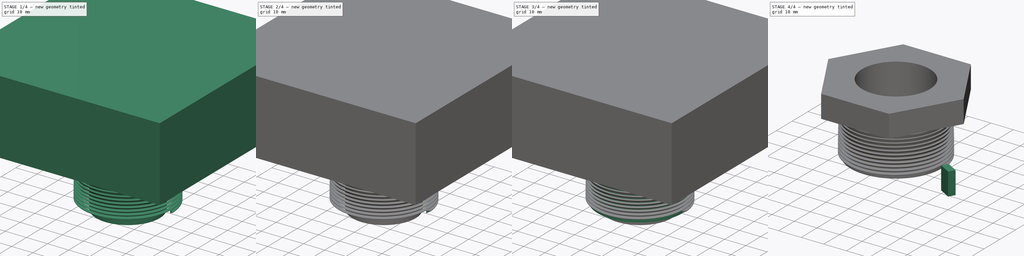
[diagram: build sequence overview — one tinted view per stage of 4, left to right]
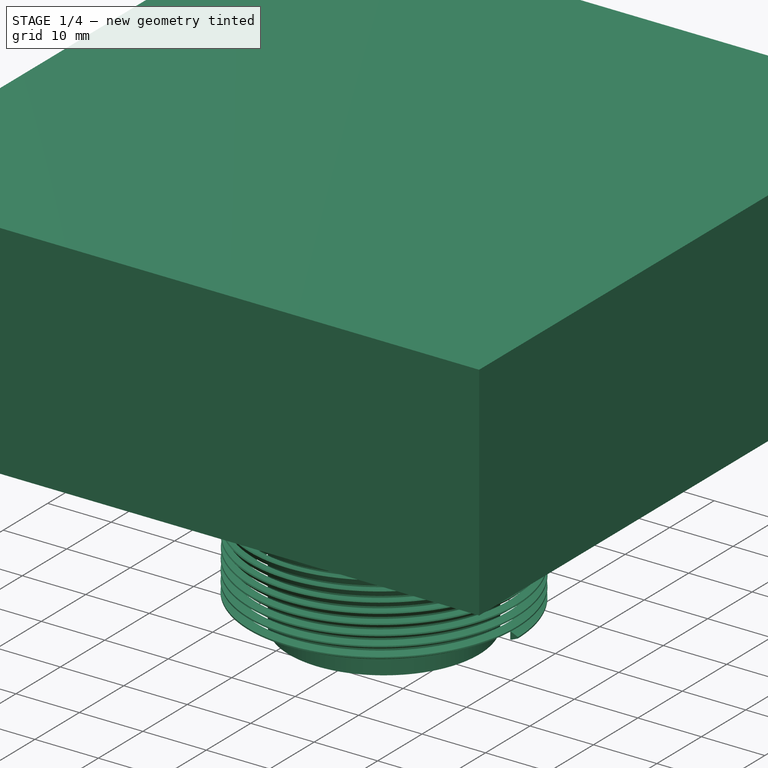
[diagram: stage 1 of 4 — iso view after this stage's code; geometry added in this stage tinted green]
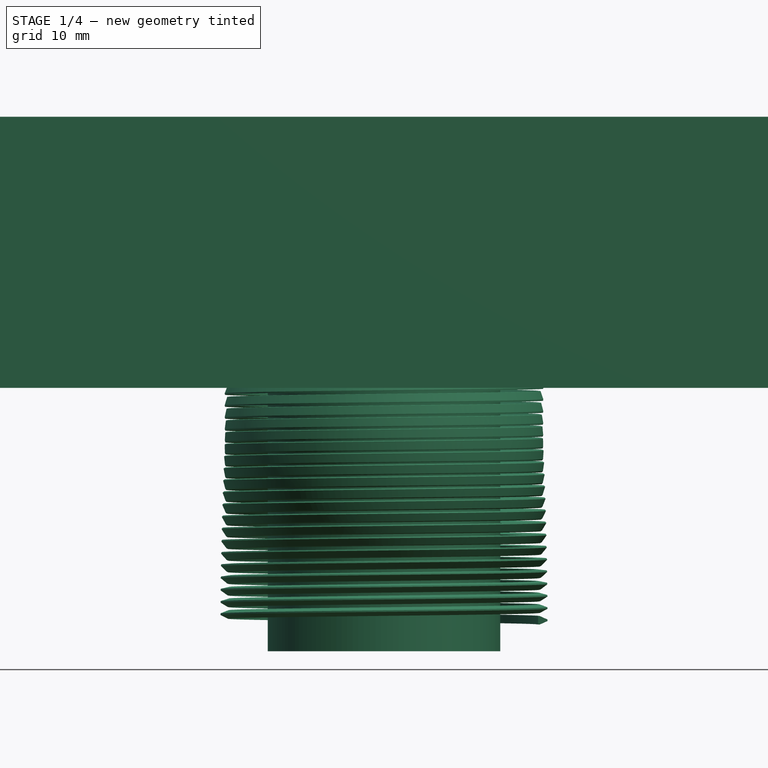
[diagram: stage 1 of 4 — front view after this stage's code; geometry added in this stage tinted green]
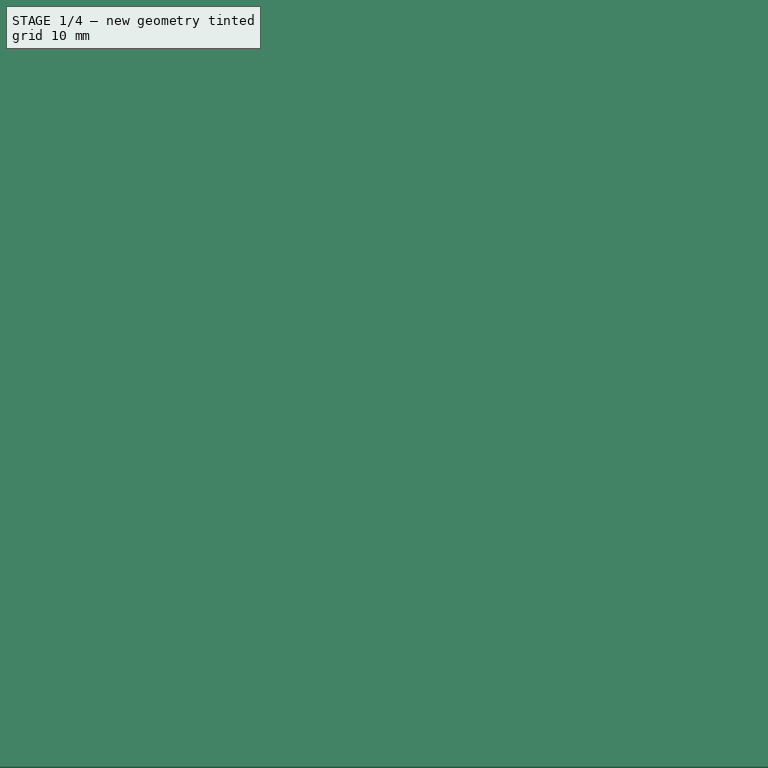
[diagram: stage 1 of 4 — top view after this stage's code; geometry added in this stage tinted green]
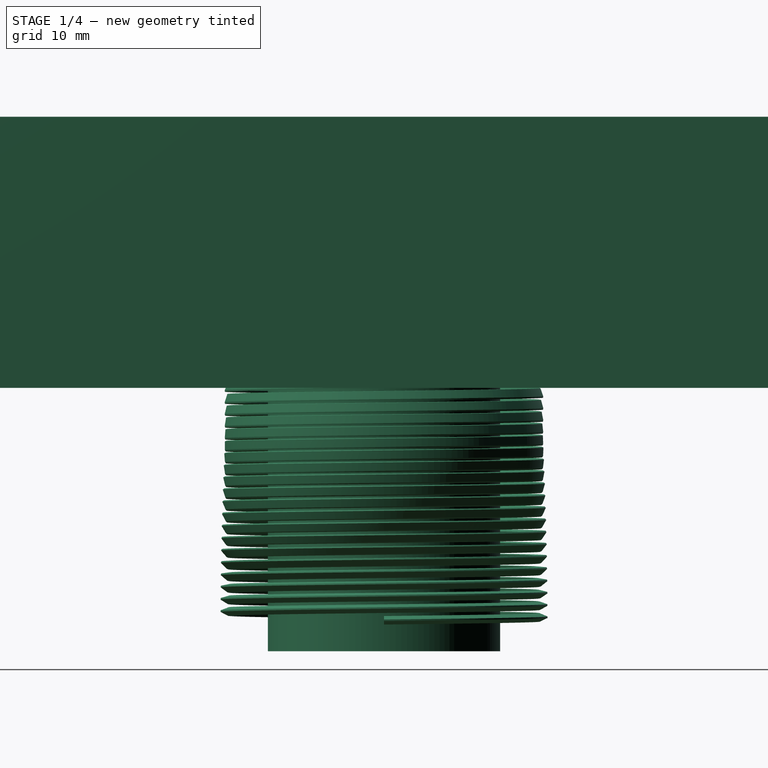
[diagram: stage 1 of 4 — right view after this stage's code; geometry added in this stage tinted green]
FCSTD DOCUMENT  (FreeCAD 0.17R13522 (Git))
Label: rosca_macho_chico
License: CreativeCommons Attribution-ShareAlike
LicenseURL: http://creativecommons.org/licenses/by-sa/4.0/
objects: Part::Box×3, Part::Cut×3, Part::Cylinder×2, Part::MultiFuse×2, Part::Helix×1, Sketcher::SketchObject×1, PartDesign::Body×1, Part::RegularPolygon×1, Part::Extrusion×1, Part::Sweep×1
note: 16 computed .brp shape members not serialized (recipe doc carries the construction recipe); baked Part::Feature solids carry a one-line shape summary decoded from their .brp

FEATURE [Part::Sweep] Sweep
  Frenet = false
  Sections = -> [Sketch]
  Solid = true
  Spine = -> Helix
  Transition = 1
FEATURE [Part::Box] Box002  label="Cube002"
  AttacherType = Attacher::AttachEngine3D
  Height = 35
  Length = 100
  Placement = pos=(-50,-50,30) rot=(0,0,1;0rad)
  Width = 100
FEATURE [Part::Cylinder] Cylinder001
  Angle = 360
  AttacherType = Attacher::AttachEngine3D
  Height = 40
  Placement = pos=(0,0,-4) rot=(0,0,1;0rad)
  Radius = 15
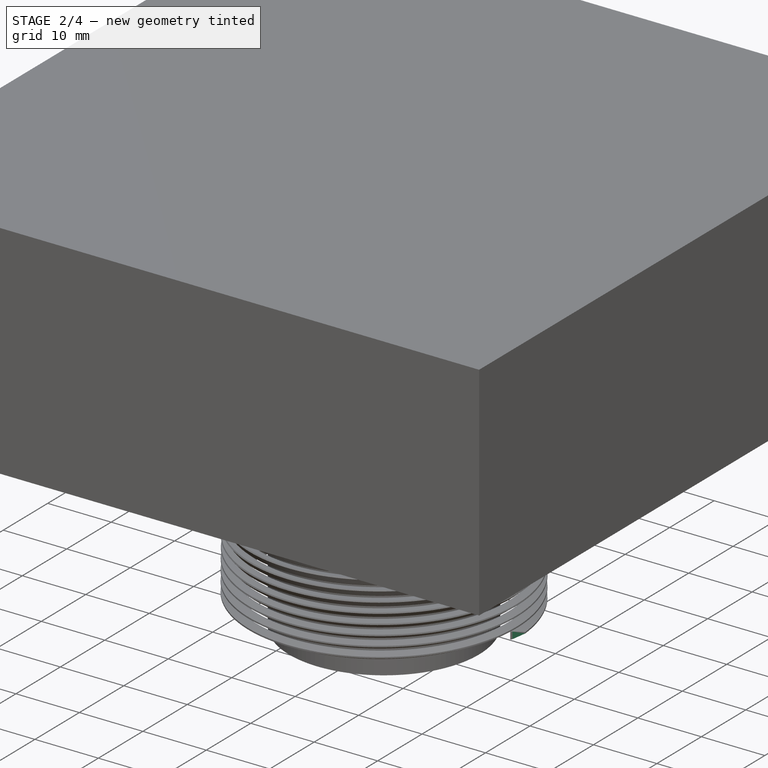
[diagram: stage 2 of 4 — iso view after this stage's code; geometry added in this stage tinted green]
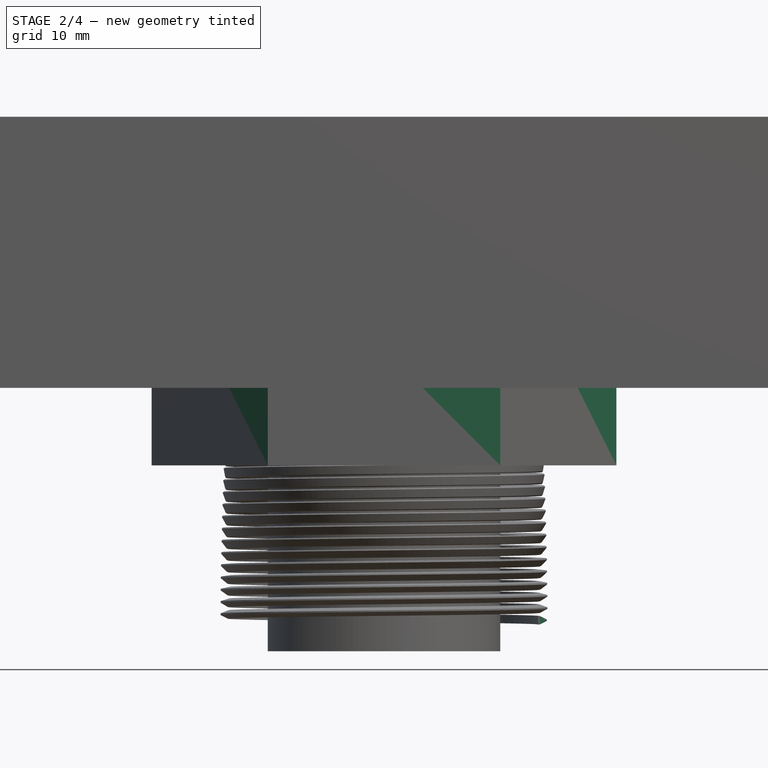
[diagram: stage 2 of 4 — front view after this stage's code; geometry added in this stage tinted green]
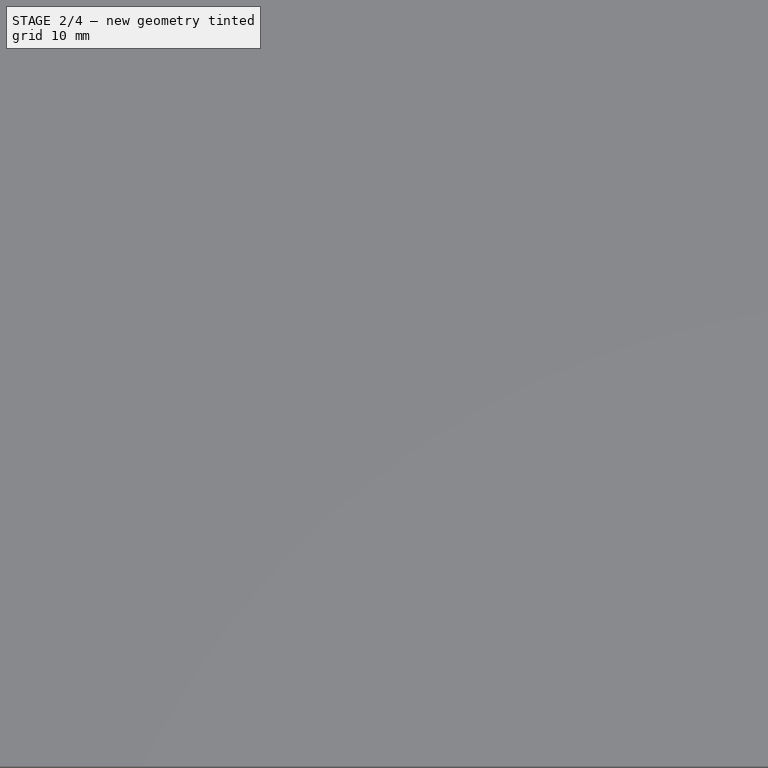
[diagram: stage 2 of 4 — top view after this stage's code; geometry added in this stage tinted green]
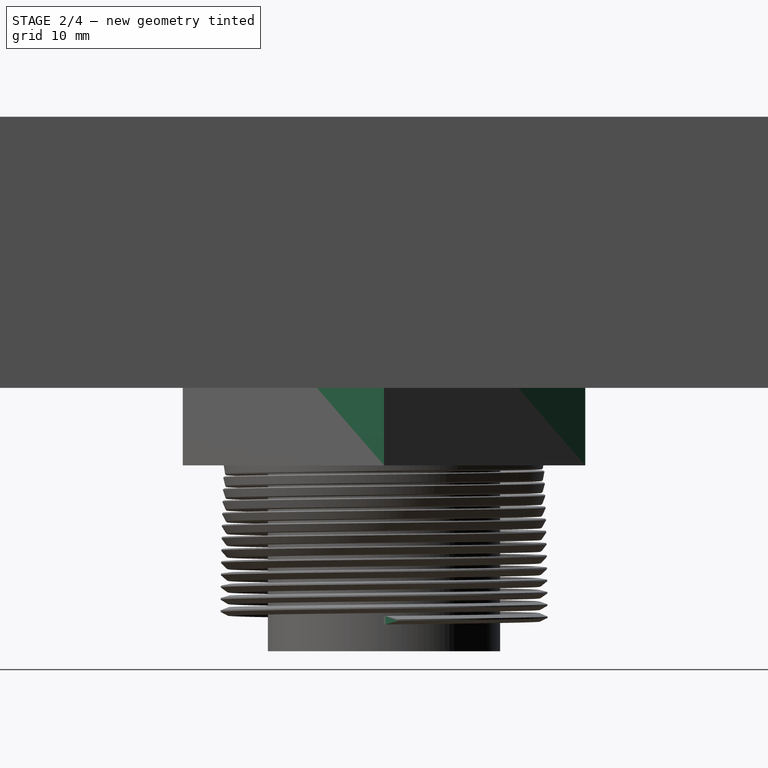
[diagram: stage 2 of 4 — right view after this stage's code; geometry added in this stage tinted green]
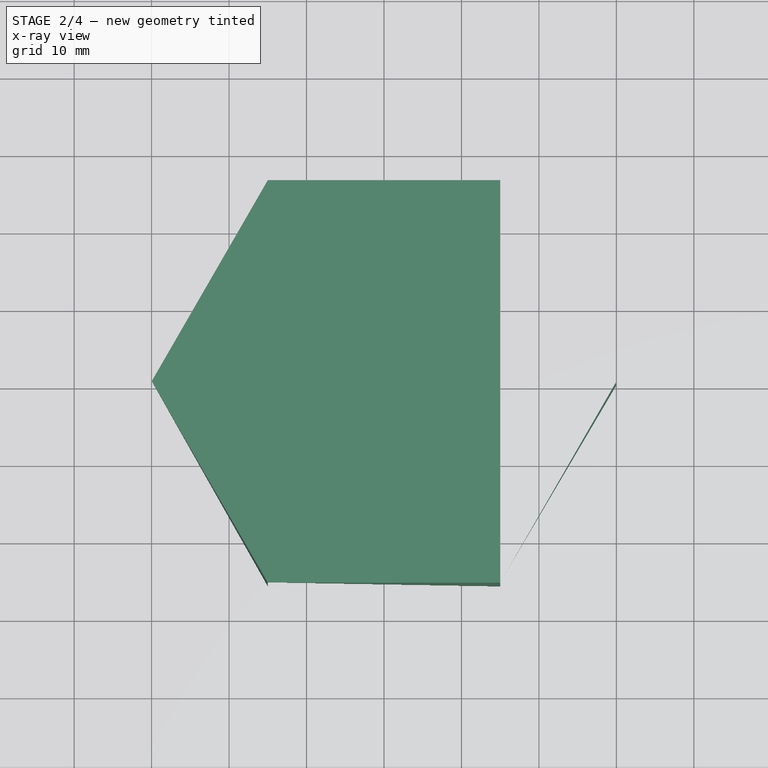
[diagram: stage 2 of 4 — x-ray composite at the top view; earlier geometry ghosted, this stage's added geometry solid]
FEATURE [Part::RegularPolygon] RegularPolygon001  label="Regular polygon001"
  AttacherType = Attacher::AttachEngine3D
  Circumradius = 30
  Polygon = 6
FEATURE [Part::Extrusion] Extrude
  Base = -> RegularPolygon001
  Dir = (0,0,1)
  DirMode = 2
  FaceMakerClass = Part::FaceMakerBullseye
  LengthFwd = 30
  LengthRev = 0
  Placement = pos=(0,0,20) rot=(0,0,1;0rad)
  Solid = true
  Symmetric = false
FEATURE [Part::Box] Box  label="Cube"
  AttacherType = Attacher::AttachEngine3D
  Height = 10
  Length = 6
  Placement = pos=(20,0,-9.2) rot=(0,0,-1;0.523599rad)
  Width = 3
FEATURE [Part::Cut] Cut  label="rosca_con_chanfle"
  Base = -> Sweep
  Tool = -> Box
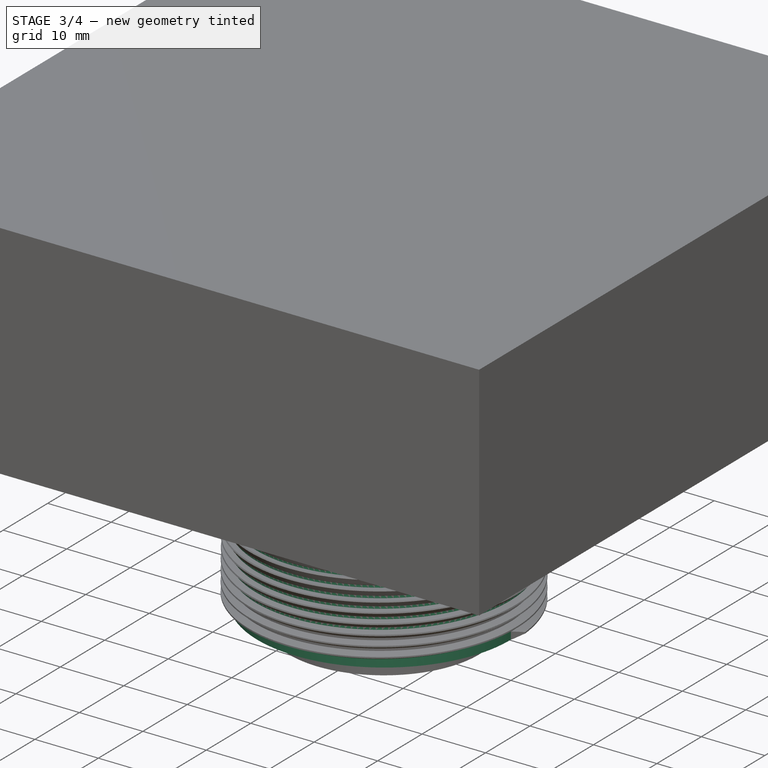
[diagram: stage 3 of 4 — iso view after this stage's code; geometry added in this stage tinted green]
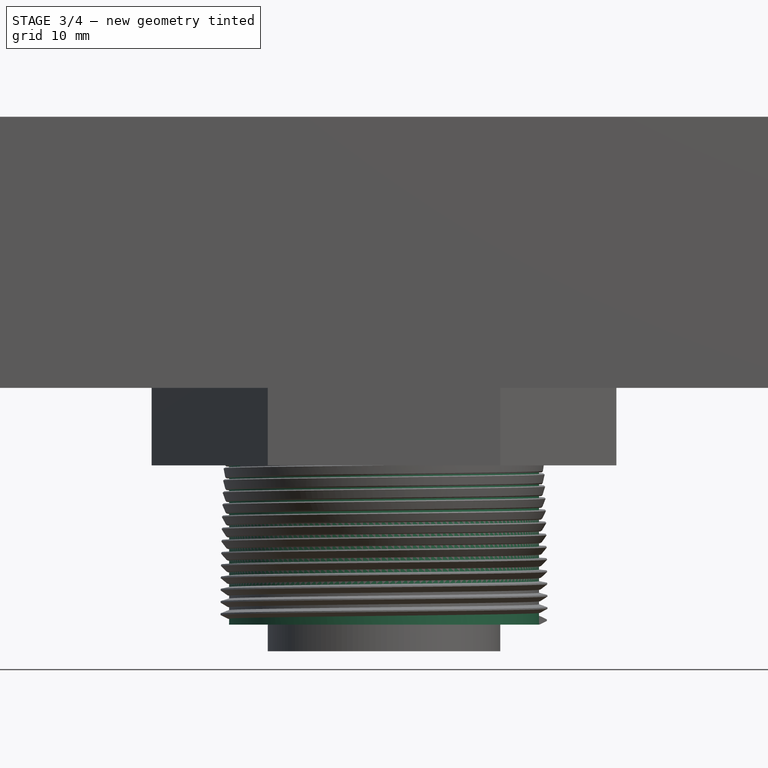
[diagram: stage 3 of 4 — front view after this stage's code; geometry added in this stage tinted green]
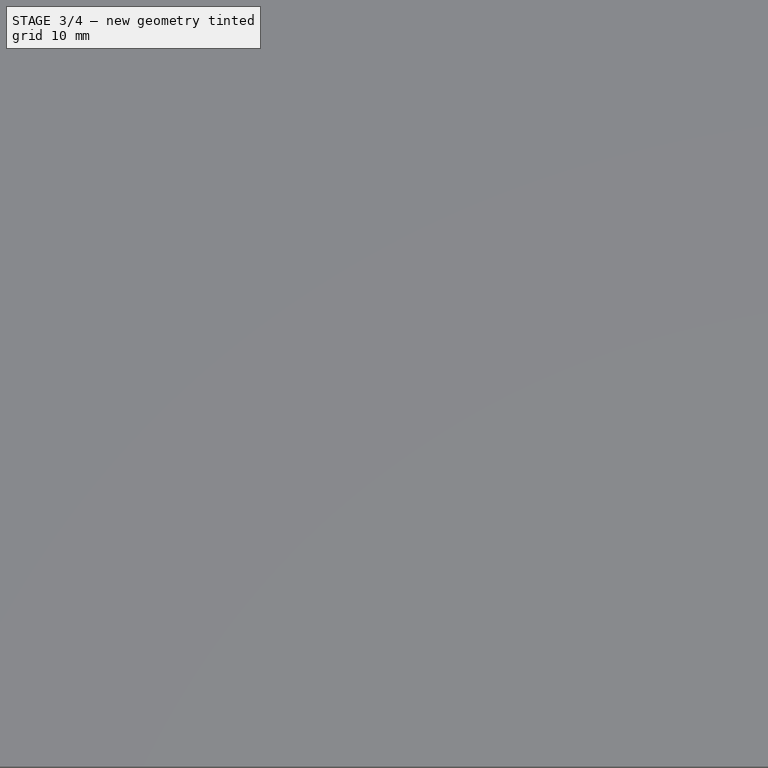
[diagram: stage 3 of 4 — top view after this stage's code; geometry added in this stage tinted green]
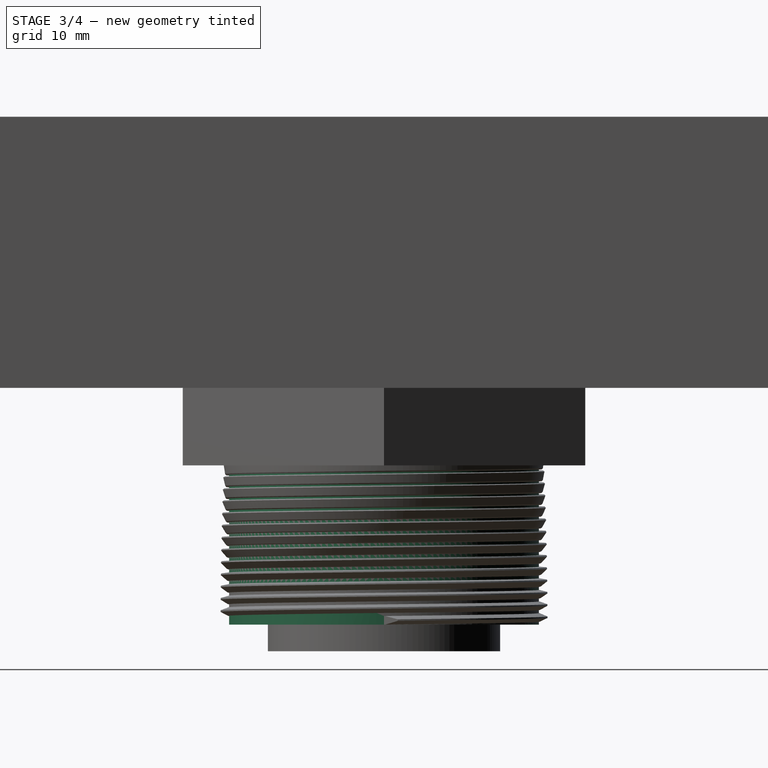
[diagram: stage 3 of 4 — right view after this stage's code; geometry added in this stage tinted green]
FEATURE [Part::Helix] Helix
  Angle = 0
  AttacherType = Attacher::AttachEngine3D
  Height = 50
  LocalCoord = 0
  Pitch = 1.5
  Radius = 20
  Style = 1
FEATURE [Sketcher::SketchObject] Sketch  label="perfil_triangular_rosca_macho"
  MapMode = 5
  Placement = pos=(0,0,0) rot=(1,0,0;1.5708rad)
  Support = -> [XZ_Plane]
  sketch-geometry (6):
    g0: LineSegment StartX=19.9 StartY=-0.55 StartZ=0 EndX=19.9 EndY=0.55 EndZ=0
    g1: LineSegment StartX=19.9 StartY=0.55 StartZ=0 EndX=20.1 EndY=0.55 EndZ=0
    g2: LineSegment StartX=20.1 StartY=0.55 StartZ=0 EndX=21.1 EndY=0.1 EndZ=0
    g3: LineSegment StartX=21.1 StartY=0.1 StartZ=0 EndX=21.1 EndY=-0.1 EndZ=0
    g4: LineSegment StartX=21.1 StartY=-0.1 StartZ=0 EndX=20.1 EndY=-0.55 EndZ=0
    g5: LineSegment StartX=19.9 StartY=-0.55 StartZ=0 EndX=20.1 EndY=-0.55 EndZ=0
  constraints (18):
    c: Vertical(g0)
    c: Coincident(g0,g1)
    c: Horizontal(g1)
    c: Coincident(g1,g2)
    c: Coincident(g2,g3)
    c: Vertical(g3)
    c: Coincident(g3,g4)
    c: Symmetric(g0,g0,g-1)
    c: Symmetric(g2,g3,g-1)
    c: DistanceX(g1,g1) = 0.2
    c: DistanceY(g0,g0) = 1.1
    c: DistanceY(g3,g3) = 0.2
    c: DistanceX(g1,g2) = 1
    c: Coincident(g5,g0)
    c: Coincident(g5,g4)
    c: Horizontal(g5)
    c: Equal(g5,g1)
    c: DistanceX(g-1,g0) = 19.9
FEATURE [PartDesign::Body] Body
  Group = -> [Sketch]
  Origin = -> Origin
FEATURE [Part::Cylinder] Cylinder
  Angle = 360
  AttacherType = Attacher::AttachEngine3D
  Height = 55
  Placement = pos=(0,0,-0.56) rot=(0,0,1;0rad)
  Radius = 20
FEATURE [Part::MultiFuse] Fusion  label="cilindro_con_cabeza"
  Shapes = -> [Cylinder,Extrude]
FEATURE [Part::MultiFuse] Fusion001
  Shapes = -> [Fusion,Cut]
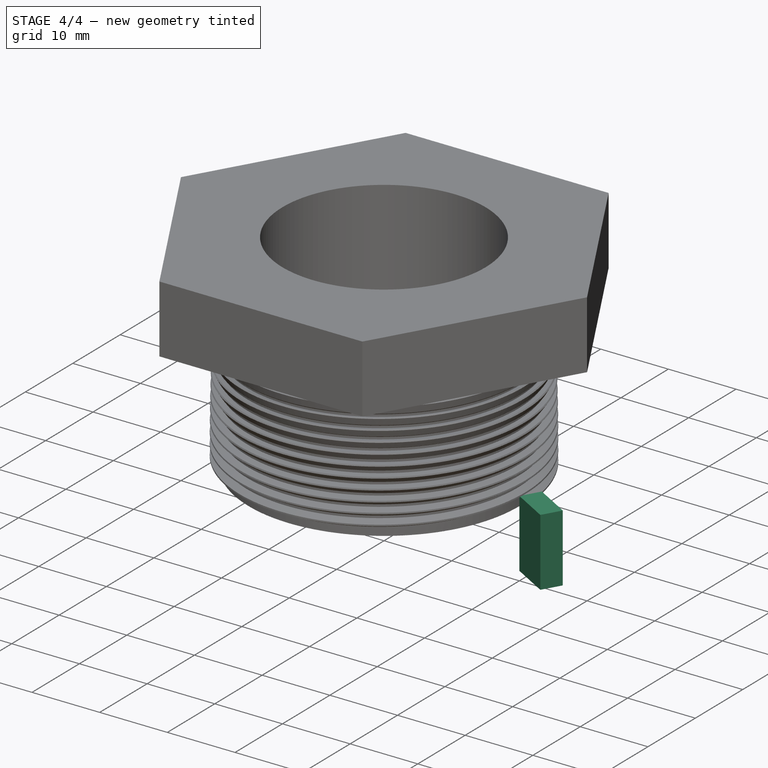
[diagram: stage 4 of 4 — iso view after this stage's code; geometry added in this stage tinted green]
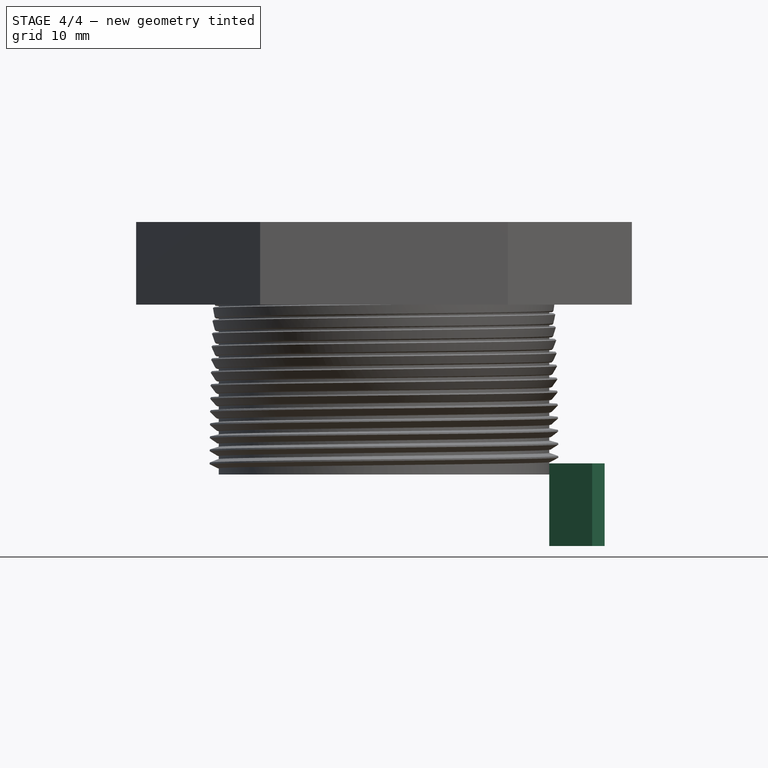
[diagram: stage 4 of 4 — front view after this stage's code; geometry added in this stage tinted green]
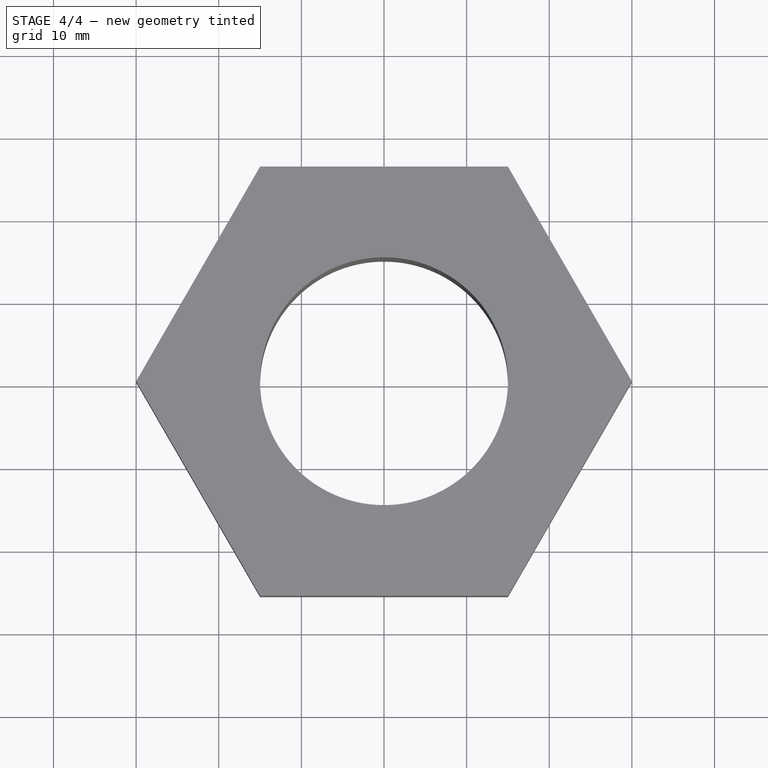
[diagram: stage 4 of 4 — top view after this stage's code; geometry added in this stage tinted green]
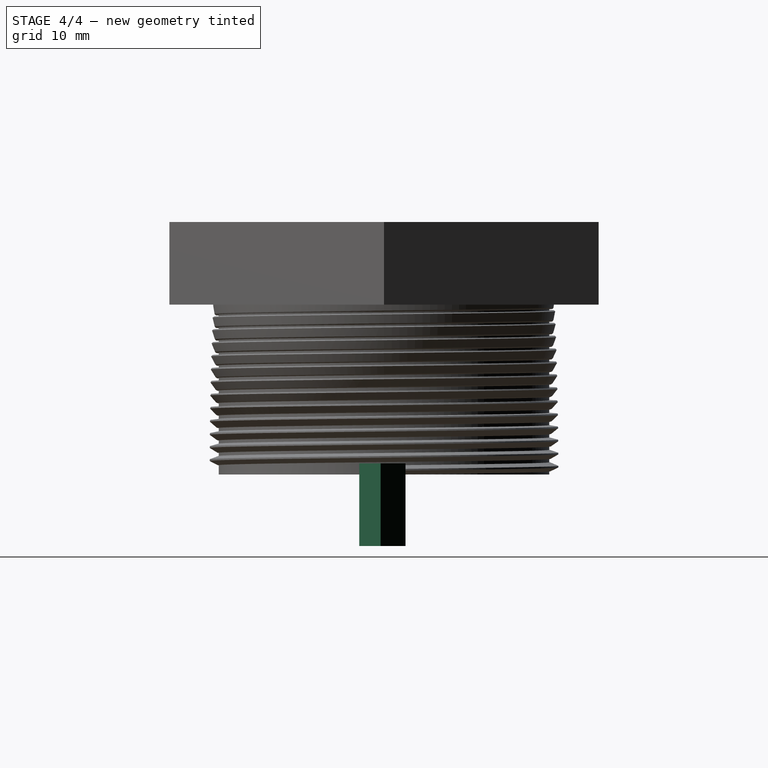
[diagram: stage 4 of 4 — right view after this stage's code; geometry added in this stage tinted green]
FEATURE [Part::Box] Box001  label="Cube001"
  AttacherType = Attacher::AttachEngine3D
  Height = 10
  Length = 6
  Placement = pos=(20,0,-9.2) rot=(0,0,-1;0.523599rad)
  Width = 3
FEATURE [Part::Cut] Cut001
  Base = -> Fusion001
  Tool = -> Box002
FEATURE [Part::Cut] Cut002
  Base = -> Cut001
  Tool = -> Cylinder001
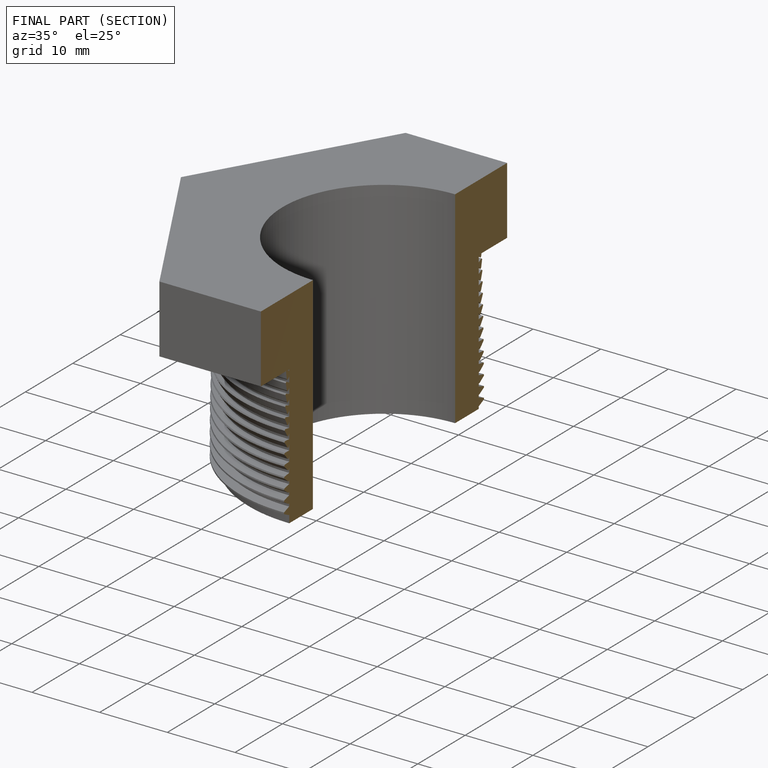
[diagram: finished part — half-section view (interior)]
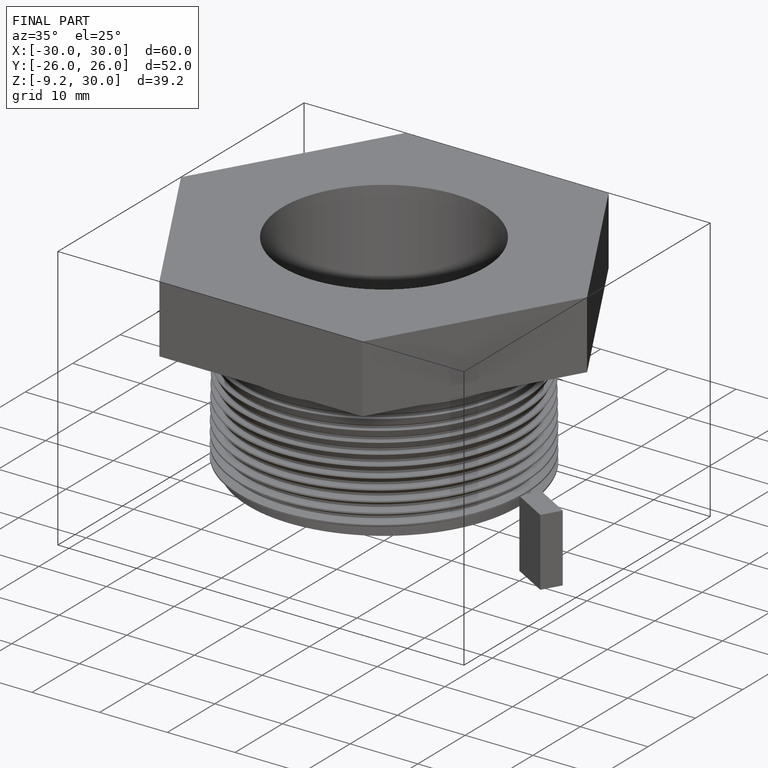
[diagram: finished part — iso view with bounding-box wireframe]
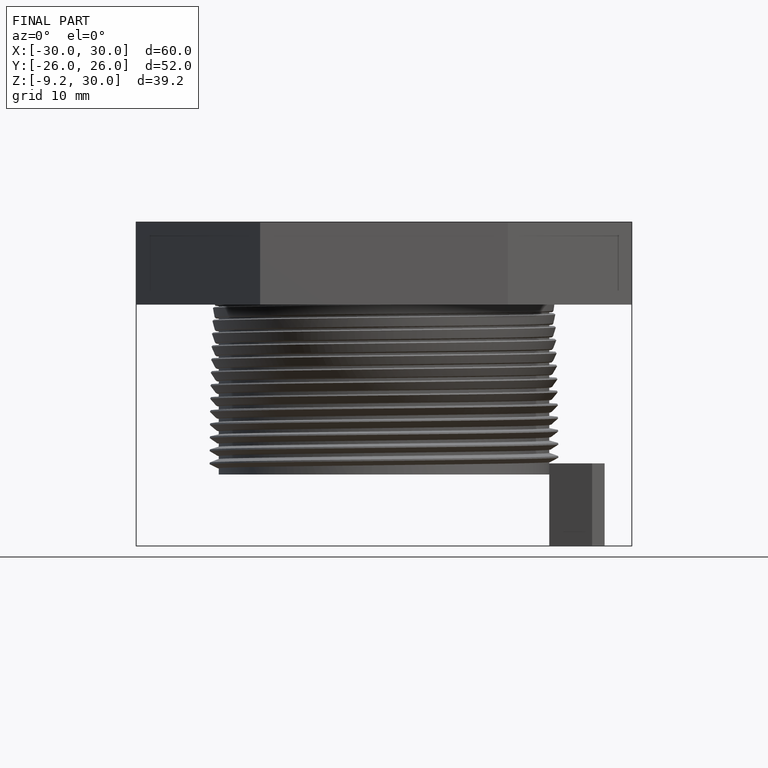
[diagram: finished part — front view with bounding-box wireframe]
